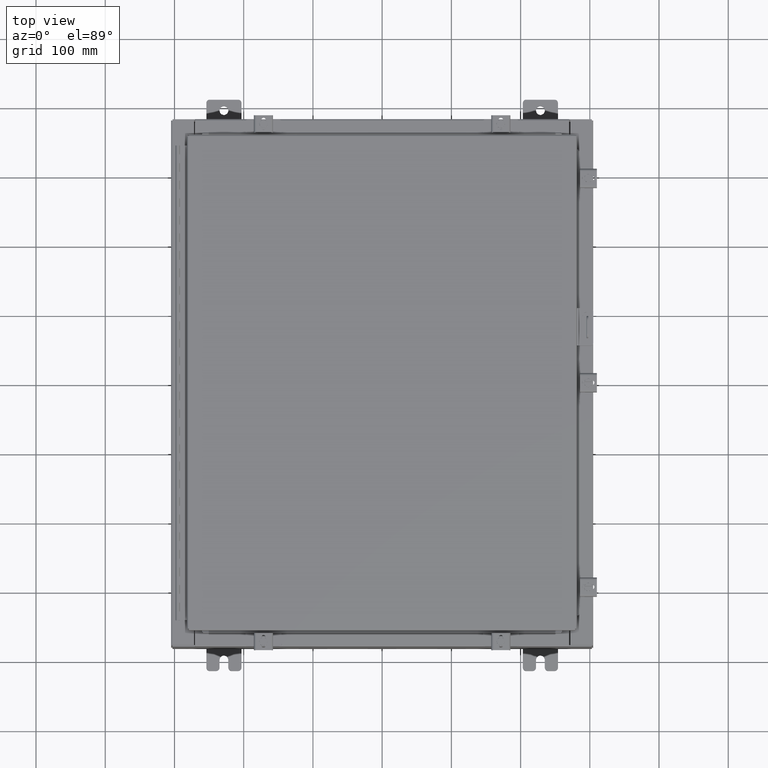
[diagram: clean part render]
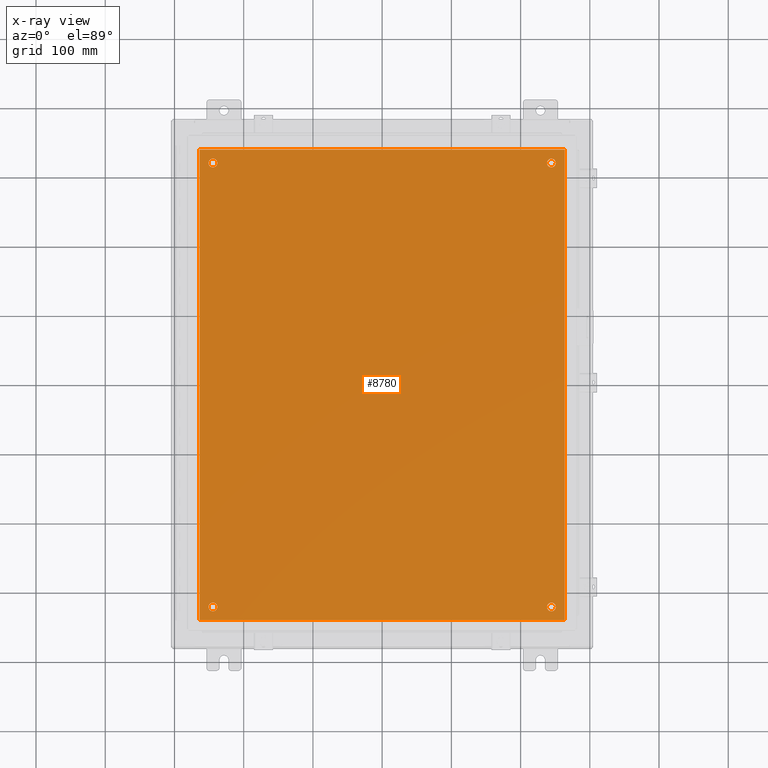
[diagram: x-ray — body ghosted, one internal face saturated and labeled with its STEP entity id]
A machine part, top view, then the same camera in x-ray: the body is ghosted and one INTERNAL B-rep face — a face not visible from any outside direction — is saturated and labeled: STEP entity #8780.
In plain terms, the highlighted planar face has unit normal (0, 0, -1).
Its self-contained STEP definition (entity closure, byte-faithful):
#162 = EDGE_CURVE ( 'NONE', #24511, #11541, #30589, .T. ) ;
#902 = CARTESIAN_POINT ( 'NONE',  ( -9.875000000000007100, 12.62500000000000000, -0.1039999999999999800 ) ) ;
#1149 = DIRECTION ( 'NONE',  ( -0.0000000000000000000, -0.0000000000000000000, 1.000000000000000000 ) ) ;
#1468 = EDGE_CURVE ( 'NONE', #16528, #24416, #29661, .T. ) ;
#1510 = VERTEX_POINT ( 'NONE', #25922 ) ;
#1895 = EDGE_CURVE ( 'NONE', #30326, #1510, #21110, .T. ) ;
#2018 = EDGE_CURVE ( 'NONE', #9353, #20585, #17486, .T. ) ;
#2789 = DIRECTION ( 'NONE',  ( -1.000000000000000000, 0.0000000000000000000, 0.0000000000000000000 ) ) ;
#3469 = CARTESIAN_POINT ( 'NONE',  ( 0.0000000000000000000, 0.0000000000000000000, -0.1039999999999999800 ) ) ;
#3644 = CARTESIAN_POINT ( 'NONE',  ( 9.375000000000007100, 12.62500000000000000, -0.1039999999999999800 ) ) ;
#4086 = EDGE_CURVE ( 'NONE', #25551, #36783, #11827, .T. ) ;
#4230 = DIRECTION ( 'NONE',  ( -0.0000000000000000000, -0.0000000000000000000, 1.000000000000000000 ) ) ;
#4616 = EDGE_CURVE ( 'NONE', #19255, #29724, #23731, .T. ) ;
#4721 = CARTESIAN_POINT ( 'NONE',  ( -9.625000000000007100, -12.62500000000000000, -0.1039999999999999800 ) ) ;
#4764 = DIRECTION ( 'NONE',  ( 0.0000000000000000000, -1.000000000000000000, 0.0000000000000000000 ) ) ;
#6556 = DIRECTION ( 'NONE',  ( -0.0000000000000000000, -0.0000000000000000000, 1.000000000000000000 ) ) ;
#6619 = FACE_OUTER_BOUND ( 'NONE', #34504, .T. ) ;
#6749 = EDGE_CURVE ( 'NONE', #24416, #16528, #18180, .T. ) ;
#6773 = AXIS2_PLACEMENT_3D ( 'NONE', #20415, #19178, #19387 ) ;
#7312 = CARTESIAN_POINT ( 'NONE',  ( 10.38300000000000100, -13.38299999999999700, -0.1040000000000009100 ) ) ;
#7461 = VECTOR ( 'NONE', #32452, 39.37007874015748100 ) ;
#8364 = ORIENTED_EDGE ( 'NONE', *, *, #17927, .T. ) ;
#8780 = ADVANCED_FACE ( 'NONE', ( #37374, #29699, #22065, #14353, #6619 ), #23767, .T. ) ;
#8839 = DIRECTION ( 'NONE',  ( -1.000000000000000000, 0.0000000000000000000, 0.0000000000000000000 ) ) ;
#9349 = LINE ( 'NONE', #7312, #17086 ) ;
#9353 = VERTEX_POINT ( 'NONE', #32458 ) ;
#9786 = EDGE_LOOP ( 'NONE', ( #16719, #32288 ) ) ;
#10045 = LINE ( 'NONE', #30800, #33086 ) ;
#10623 = AXIS2_PLACEMENT_3D ( 'NONE', #3469, #12217, #32413 ) ;
#10640 = CIRCLE ( 'NONE', #27400, 0.2500000000000008900 ) ;
#11308 = CARTESIAN_POINT ( 'NONE',  ( -9.625000000000007100, 12.62500000000000000, -0.1039999999999999800 ) ) ;
#11541 = VERTEX_POINT ( 'NONE', #902 ) ;
#11782 = ORIENTED_EDGE ( 'NONE', *, *, #1468, .T. ) ;
#11827 = LINE ( 'NONE', #21493, #26317 ) ;
#12217 = DIRECTION ( 'NONE',  ( 0.0000000000000000000, 0.0000000000000000000, -1.000000000000000000 ) ) ;
#12563 = CARTESIAN_POINT ( 'NONE',  ( -9.875000000000007100, -12.62500000000000000, -0.1039999999999999800 ) ) ;
#12951 = EDGE_LOOP ( 'NONE', ( #29353, #8364 ) ) ;
#13004 = AXIS2_PLACEMENT_3D ( 'NONE', #18568, #1149, #21467 ) ;
#13087 = CARTESIAN_POINT ( 'NONE',  ( -9.375000000000007100, 12.62500000000000000, -0.1039999999999999800 ) ) ;
#14245 = CARTESIAN_POINT ( 'NONE',  ( 10.38300000000000100, -13.38299999999999700, -0.1040000000000009100 ) ) ;
#14272 = EDGE_CURVE ( 'NONE', #1510, #25551, #10045, .T. ) ;
#14353 = FACE_BOUND ( 'NONE', #12951, .T. ) ;
#15334 = CARTESIAN_POINT ( 'NONE',  ( -10.38300000000000100, -13.38299999999999900, -0.1040000000000009100 ) ) ;
#16117 = DIRECTION ( 'NONE',  ( -0.0000000000000000000, -0.0000000000000000000, 1.000000000000000000 ) ) ;
#16528 = VERTEX_POINT ( 'NONE', #23827 ) ;
#16719 = ORIENTED_EDGE ( 'NONE', *, *, #4616, .T. ) ;
#16806 = DIRECTION ( 'NONE',  ( -0.0000000000000000000, -0.0000000000000000000, 1.000000000000000000 ) ) ;
#16895 = ORIENTED_EDGE ( 'NONE', *, *, #2018, .T. ) ;
#16964 = DIRECTION ( 'NONE',  ( -1.000000000000000000, 0.0000000000000000000, 0.0000000000000000000 ) ) ;
#16989 = EDGE_LOOP ( 'NONE', ( #11782, #29816 ) ) ;
#17086 = VECTOR ( 'NONE', #27555, 39.37007874015748100 ) ;
#17211 = DIRECTION ( 'NONE',  ( -0.0000000000000000000, -0.0000000000000000000, 1.000000000000000000 ) ) ;
#17371 = CARTESIAN_POINT ( 'NONE',  ( 9.625000000000007100, -12.62500000000000000, -0.1039999999999999800 ) ) ;
#17486 = CIRCLE ( 'NONE', #29323, 0.2499999999999998100 ) ;
#17927 = EDGE_CURVE ( 'NONE', #11541, #24511, #32369, .T. ) ;
#17985 = ORIENTED_EDGE ( 'NONE', *, *, #14272, .F. ) ;
#18180 = CIRCLE ( 'NONE', #33783, 0.2499999999999998100 ) ;
#18568 = CARTESIAN_POINT ( 'NONE',  ( -9.625000000000007100, 12.62500000000000000, -0.1039999999999999800 ) ) ;
#19178 = DIRECTION ( 'NONE',  ( -0.0000000000000000000, -0.0000000000000000000, 1.000000000000000000 ) ) ;
#19255 = VERTEX_POINT ( 'NONE', #26662 ) ;
#19387 = DIRECTION ( 'NONE',  ( -1.000000000000000000, 0.0000000000000000000, 0.0000000000000000000 ) ) ;
#19716 = DIRECTION ( 'NONE',  ( 1.000000000000000000, -0.0000000000000000000, -0.0000000000000000000 ) ) ;
#20415 = CARTESIAN_POINT ( 'NONE',  ( 9.625000000000007100, -12.62500000000000000, -0.1039999999999999800 ) ) ;
#20585 = VERTEX_POINT ( 'NONE', #3644 ) ;
#20742 = EDGE_CURVE ( 'NONE', #36783, #30326, #9349, .T. ) ;
#20828 = ORIENTED_EDGE ( 'NONE', *, *, #1895, .F. ) ;
#21110 = LINE ( 'NONE', #23966, #7461 ) ;
#21129 = EDGE_LOOP ( 'NONE', ( #16895, #31272 ) ) ;
#21467 = DIRECTION ( 'NONE',  ( -1.000000000000000000, 0.0000000000000000000, 0.0000000000000000000 ) ) ;
#21474 = EDGE_CURVE ( 'NONE', #29724, #19255, #10640, .T. ) ;
#21493 = CARTESIAN_POINT ( 'NONE',  ( -10.50000000000000200, -13.38299999999999900, -0.1040000000000009100 ) ) ;
#22065 = FACE_BOUND ( 'NONE', #21129, .T. ) ;
#22176 = AXIS2_PLACEMENT_3D ( 'NONE', #4721, #4230, #2789 ) ;
#23182 = DIRECTION ( 'NONE',  ( -0.0000000000000000000, -0.0000000000000000000, 1.000000000000000000 ) ) ;
#23731 = CIRCLE ( 'NONE', #22176, 0.2500000000000008900 ) ;
#23767 = PLANE ( 'NONE',  #10623 ) ;
#23827 = CARTESIAN_POINT ( 'NONE',  ( 9.875000000000007100, -12.62500000000000000, -0.1039999999999999800 ) ) ;
#23966 = CARTESIAN_POINT ( 'NONE',  ( 10.50000000000000400, 13.38299999999999900, -0.1040000000000009100 ) ) ;
#24303 = CARTESIAN_POINT ( 'NONE',  ( 9.625000000000007100, 12.62500000000000000, -0.1039999999999999800 ) ) ;
#24416 = VERTEX_POINT ( 'NONE', #27942 ) ;
#24511 = VERTEX_POINT ( 'NONE', #13087 ) ;
#25551 = VERTEX_POINT ( 'NONE', #15334 ) ;
#25922 = CARTESIAN_POINT ( 'NONE',  ( -10.38300000000000100, 13.38299999999999700, -0.1040000000000020100 ) ) ;
#26179 = AXIS2_PLACEMENT_3D ( 'NONE', #33349, #16117, #36256 ) ;
#26317 = VECTOR ( 'NONE', #19716, 39.37007874015748100 ) ;
#26662 = CARTESIAN_POINT ( 'NONE',  ( -9.375000000000007100, -12.62500000000000000, -0.1039999999999999800 ) ) ;
#27400 = AXIS2_PLACEMENT_3D ( 'NONE', #34033, #16806, #36940 ) ;
#27555 = DIRECTION ( 'NONE',  ( 0.0000000000000000000, 1.000000000000000000, 0.0000000000000000000 ) ) ;
#27806 = CARTESIAN_POINT ( 'NONE',  ( 10.38300000000000100, 13.38299999999999700, -0.1040000000000009100 ) ) ;
#27942 = CARTESIAN_POINT ( 'NONE',  ( 9.375000000000007100, -12.62500000000000000, -0.1039999999999999800 ) ) ;
#29323 = AXIS2_PLACEMENT_3D ( 'NONE', #24303, #23182, #8839 ) ;
#29353 = ORIENTED_EDGE ( 'NONE', *, *, #162, .T. ) ;
#29661 = CIRCLE ( 'NONE', #6773, 0.2499999999999998100 ) ;
#29699 = FACE_BOUND ( 'NONE', #16989, .T. ) ;
#29724 = VERTEX_POINT ( 'NONE', #12563 ) ;
#29816 = ORIENTED_EDGE ( 'NONE', *, *, #6749, .T. ) ;
#30273 = EDGE_CURVE ( 'NONE', #20585, #9353, #31911, .T. ) ;
#30326 = VERTEX_POINT ( 'NONE', #27806 ) ;
#30589 = CIRCLE ( 'NONE', #33431, 0.2500000000000008900 ) ;
#30800 = CARTESIAN_POINT ( 'NONE',  ( -10.38300000000000100, 13.38299999999999700, -0.1040000000000020100 ) ) ;
#31272 = ORIENTED_EDGE ( 'NONE', *, *, #30273, .T. ) ;
#31911 = CIRCLE ( 'NONE', #26179, 0.2499999999999998100 ) ;
#32288 = ORIENTED_EDGE ( 'NONE', *, *, #21474, .T. ) ;
#32369 = CIRCLE ( 'NONE', #13004, 0.2500000000000008900 ) ;
#32413 = DIRECTION ( 'NONE',  ( -1.000000000000000000, 0.0000000000000000000, -0.0000000000000000000 ) ) ;
#32452 = DIRECTION ( 'NONE',  ( -1.000000000000000000, -0.0000000000000000000, -0.0000000000000000000 ) ) ;
#32458 = CARTESIAN_POINT ( 'NONE',  ( 9.875000000000007100, 12.62500000000000000, -0.1039999999999999800 ) ) ;
#33086 = VECTOR ( 'NONE', #4764, 39.37007874015748100 ) ;
#33265 = ORIENTED_EDGE ( 'NONE', *, *, #20742, .F. ) ;
#33349 = CARTESIAN_POINT ( 'NONE',  ( 9.625000000000007100, 12.62500000000000000, -0.1039999999999999800 ) ) ;
#33431 = AXIS2_PLACEMENT_3D ( 'NONE', #11308, #6556, #35040 ) ;
#33783 = AXIS2_PLACEMENT_3D ( 'NONE', #17371, #17211, #16964 ) ;
#34033 = CARTESIAN_POINT ( 'NONE',  ( -9.625000000000007100, -12.62500000000000000, -0.1039999999999999800 ) ) ;
#34504 = EDGE_LOOP ( 'NONE', ( #35974, #17985, #20828, #33265 ) ) ;
#35040 = DIRECTION ( 'NONE',  ( -1.000000000000000000, 0.0000000000000000000, 0.0000000000000000000 ) ) ;
#35974 = ORIENTED_EDGE ( 'NONE', *, *, #4086, .F. ) ;
#36256 = DIRECTION ( 'NONE',  ( -1.000000000000000000, 0.0000000000000000000, 0.0000000000000000000 ) ) ;
#36783 = VERTEX_POINT ( 'NONE', #14245 ) ;
#36940 = DIRECTION ( 'NONE',  ( -1.000000000000000000, 0.0000000000000000000, 0.0000000000000000000 ) ) ;
#37374 = FACE_BOUND ( 'NONE', #9786, .T. ) ;